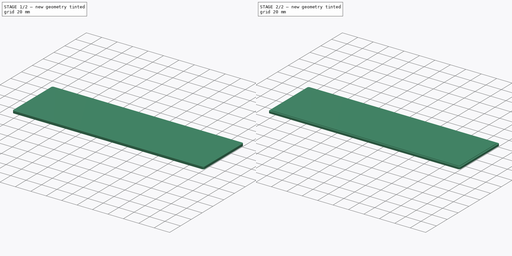
[diagram: build sequence overview — one tinted view per stage of 2, left to right]
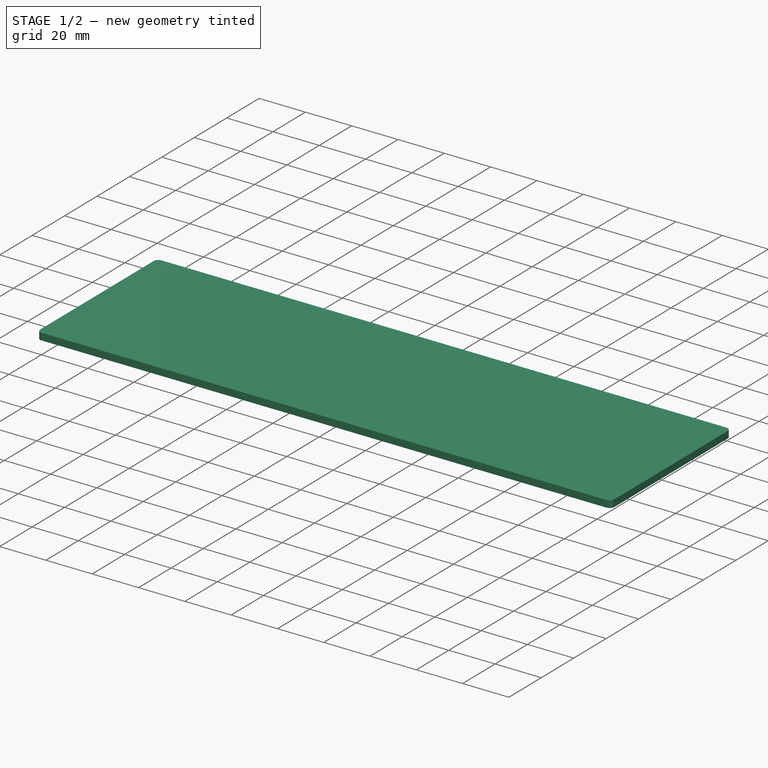
[diagram: stage 1 of 2 — iso view after this stage's code; geometry added in this stage tinted green]
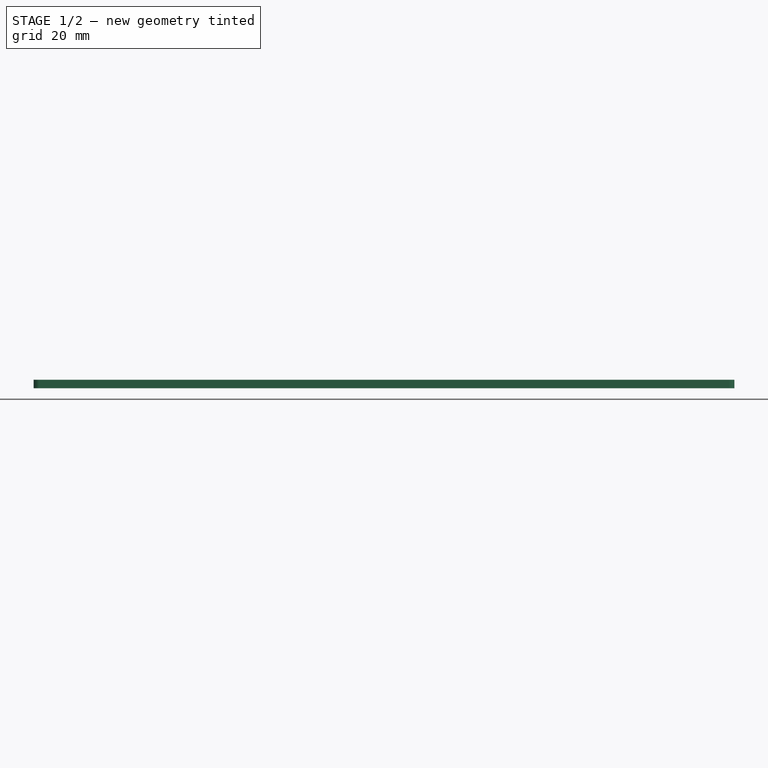
[diagram: stage 1 of 2 — front view after this stage's code; geometry added in this stage tinted green]
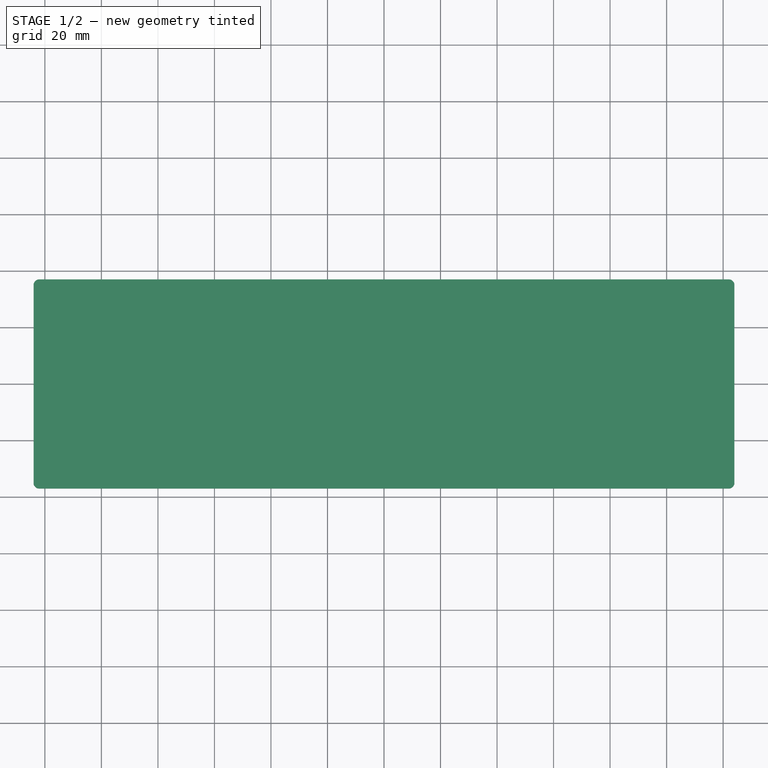
[diagram: stage 1 of 2 — top view after this stage's code; geometry added in this stage tinted green]
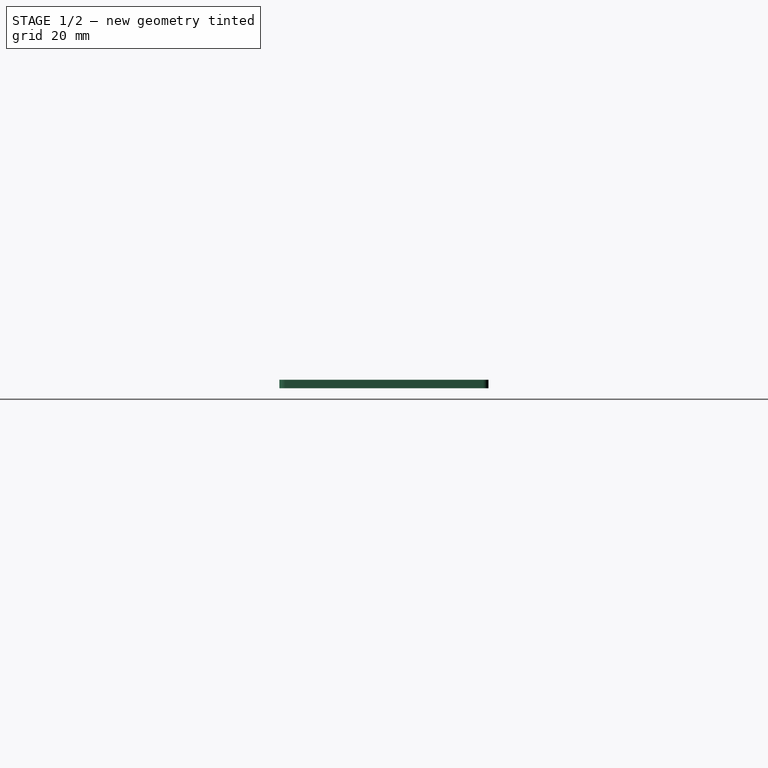
[diagram: stage 1 of 2 — right view after this stage's code; geometry added in this stage tinted green]
FCSTD DOCUMENT  (FreeCAD 1.0R39319 (Git))
Label: Flat Side
License: All rights reserved
LicenseURL: http://en.wikipedia.org/wiki/All_rights_reserved
objects: Sketcher::SketchObject×2, PartDesign::Fillet×2, PartDesign::Pad×1, PartDesign::Pocket×1, PartDesign::Body×1, Image::ImagePlane×1
note: 17 computed .brp shape members not serialized (recipe doc carries the construction recipe); baked Part::Feature solids carry a one-line shape summary decoded from their .brp

FEATURE [Sketcher::SketchObject] Sketch
  ArcFitTolerance = 0
  AttachmentSupport = -> [XY_Plane]
  FullyConstrained = true
  MakeInternals = false
  MapMode = 5
  sketch-geometry (4):
    g0: LineSegment StartX=-124 StartY=37 StartZ=0 EndX=124 EndY=37 EndZ=0
    g1: LineSegment StartX=124 StartY=37 StartZ=0 EndX=124 EndY=-37 EndZ=0
    g2: LineSegment StartX=124 StartY=-37 StartZ=0 EndX=-124 EndY=-37 EndZ=0
    g3: LineSegment StartX=-124 StartY=-37 StartZ=0 EndX=-124 EndY=37 EndZ=0
  constraints (10):
    c: Coincident(g0,g1)
    c: Coincident(g1,g2)
    c: Coincident(g2,g3)
    c: Coincident(g3,g0)
    c: Horizontal(g2)
    c: Vertical(g1)
    c: Symmetric(g0,g2,g-1)
    c: Symmetric(g0,g0,g-2)
    c: DistanceX(g0,g0) = 248
    c: DistanceY(g3,g3) = 74
FEATURE [PartDesign::Pad] Pad
  AllowMultiFace = false
  Direction = (0,0,1)
  Length = 3
  Length2 = 100
  Profile = -> Sketch
  Suppressed = false
  Type = 0
FEATURE [PartDesign::Fillet] Fillet
  Base = -> Pad [Edge5,Edge2,Edge1,Edge8]
  BaseFeature = -> Pad
  Radius = 2
  Refine = true
  SupportTransform = false
  Suppressed = false
  UseAllEdges = false
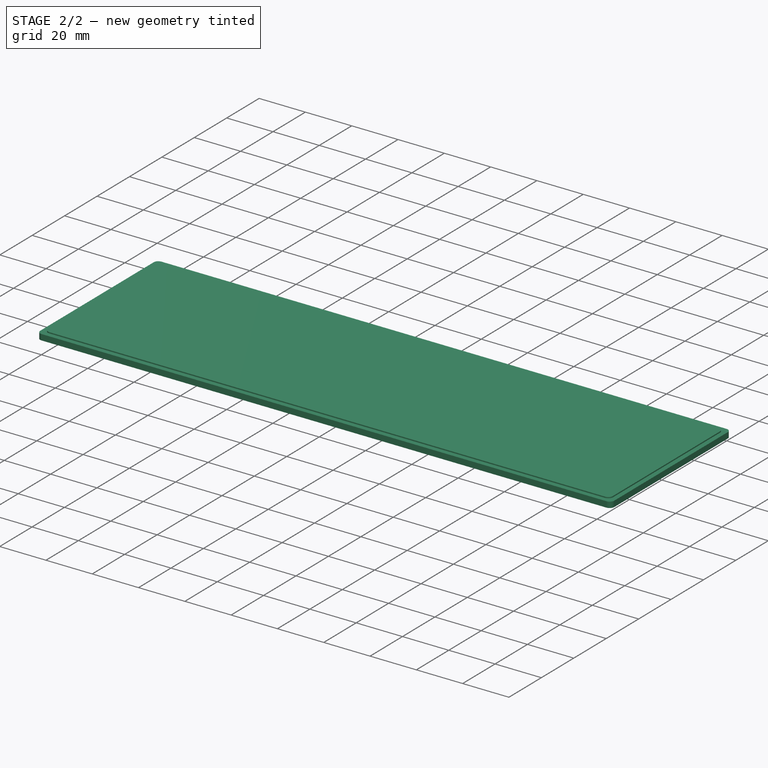
[diagram: stage 2 of 2 — iso view after this stage's code; geometry added in this stage tinted green]
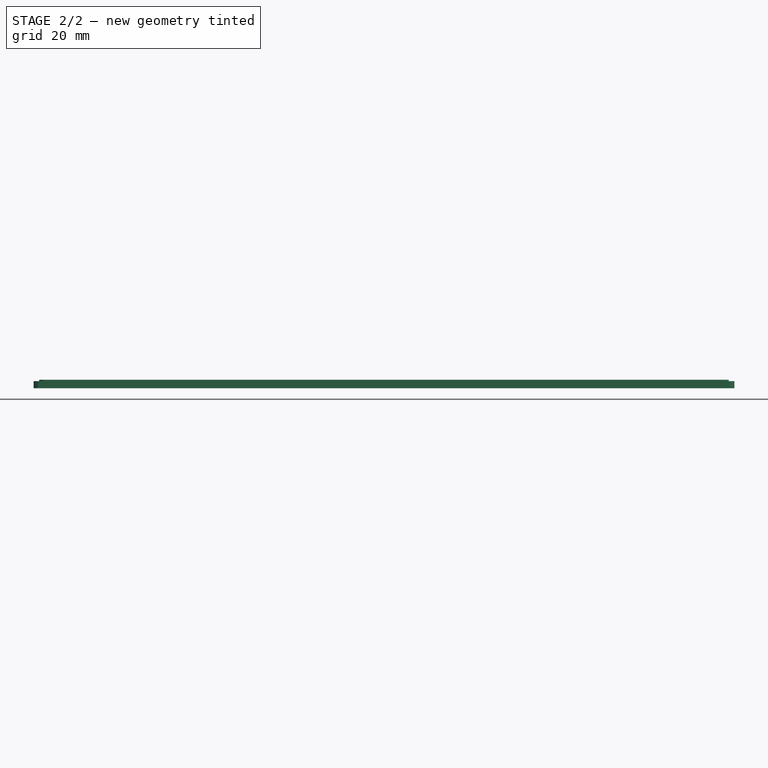
[diagram: stage 2 of 2 — front view after this stage's code; geometry added in this stage tinted green]
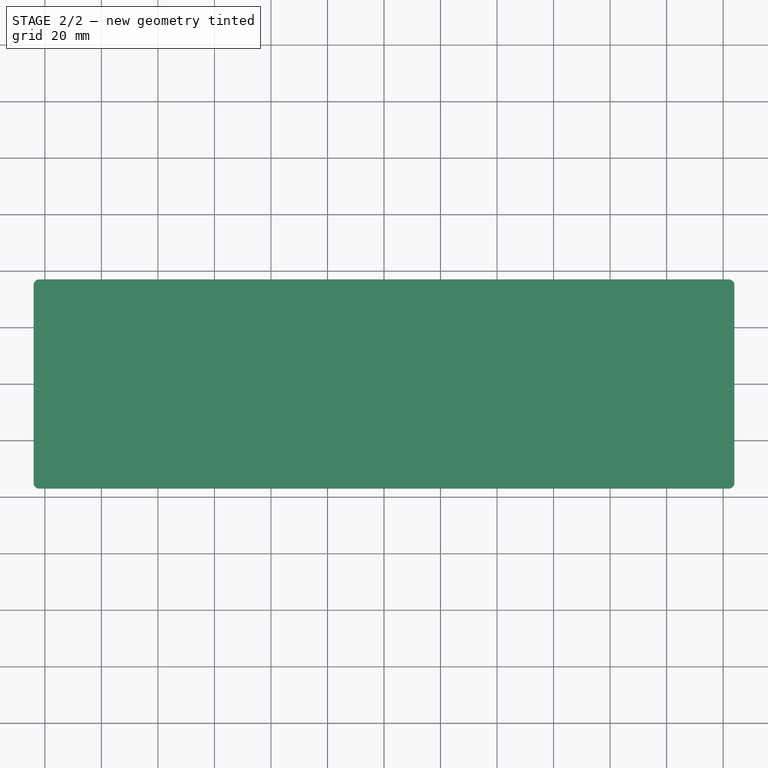
[diagram: stage 2 of 2 — top view after this stage's code; geometry added in this stage tinted green]
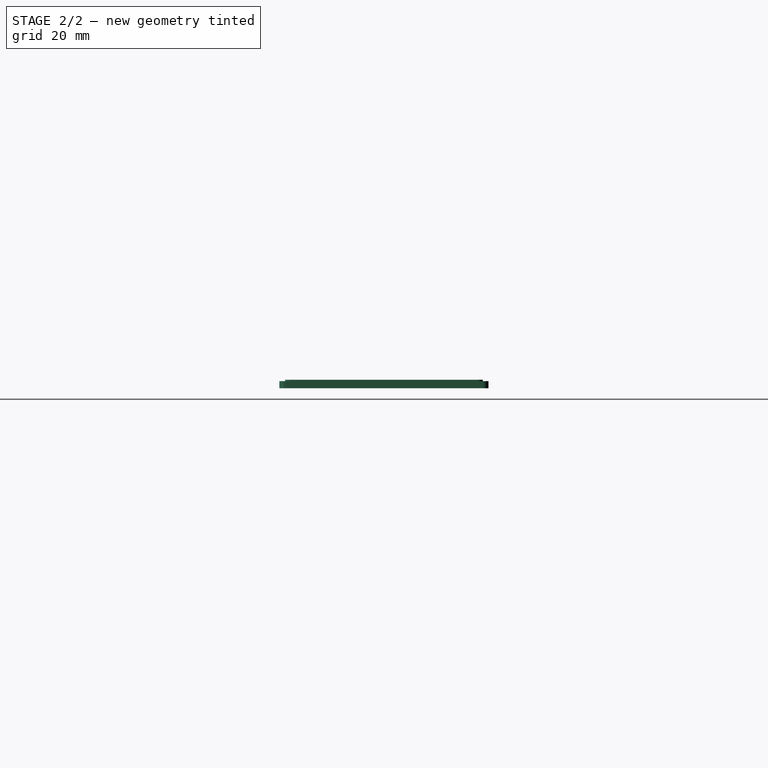
[diagram: stage 2 of 2 — right view after this stage's code; geometry added in this stage tinted green]
FEATURE [Sketcher::SketchObject] Sketch001
  ArcFitTolerance = 0
  AttachmentSupport = -> [Fillet]
  FullyConstrained = true
  MakeInternals = false
  MapMode = 5
  Placement = pos=(0,0,3) rot=(0,0,1;0rad)
  sketch-geometry (8):
    g0: LineSegment StartX=-122 StartY=35 StartZ=0 EndX=122 EndY=35 EndZ=0
    g1: LineSegment StartX=122 StartY=35 StartZ=0 EndX=122 EndY=-35 EndZ=0
    g2: LineSegment StartX=122 StartY=-35 StartZ=0 EndX=-122 EndY=-35 EndZ=0
    g3: LineSegment StartX=-122 StartY=-35 StartZ=0 EndX=-122 EndY=35 EndZ=0
    g4: LineSegment StartX=-124 StartY=37 StartZ=0 EndX=124 EndY=37 EndZ=0
    g5: LineSegment StartX=124 StartY=37 StartZ=0 EndX=124 EndY=-37 EndZ=0
    g6: LineSegment StartX=124 StartY=-37 StartZ=0 EndX=-124 EndY=-37 EndZ=0
    g7: LineSegment StartX=-124 StartY=-37 StartZ=0 EndX=-124 EndY=37 EndZ=0
  constraints (20):
    c: Coincident(g0,g1)
    c: Coincident(g1,g2)
    c: Coincident(g2,g3)
    c: Coincident(g3,g0)
    c: Horizontal(g2)
    c: Vertical(g1)
    c: Symmetric(g0,g2,g-1)
    c: Symmetric(g0,g0,g-2)
    c: Coincident(g4,g5)
    c: Coincident(g5,g6)
    c: Coincident(g6,g7)
    c: Coincident(g7,g4)
    c: Horizontal(g6)
    c: Vertical(g5)
    c: Symmetric(g4,g4,g-2)
    c: Symmetric(g4,g6,g-1)
    c: DistanceY(g7,g7) = 74
    c: DistanceX(g4,g4) = 248
    c: DistanceX(g4,g0) = 2
    c: DistanceY(g0,g4) = 2
FEATURE [PartDesign::Pocket] Pocket
  AllowMultiFace = false
  BaseFeature = -> Fillet
  Direction = (0,0,-1)
  Length = 0.5
  Length2 = 100
  Profile = -> Sketch001
  Suppressed = false
  Type = 0
FEATURE [PartDesign::Fillet] Fillet001
  Base = -> Pocket [Edge32,Edge34,Edge29,Edge30]
  BaseFeature = -> Pocket
  Radius = 2
  Refine = true
  SupportTransform = false
  Suppressed = false
  UseAllEdges = false
FEATURE [PartDesign::Body] Body
  AllowCompound = false
  Group = -> [Sketch,Pad,Fillet,Sketch001,Pocket,Fillet001]
  Origin = -> Origin
  Tip = -> Fillet001
FEATURE [Image::ImagePlane] Flat_Side  label="Flat Side"
  XSize = 198.942
  YSize = 198.677
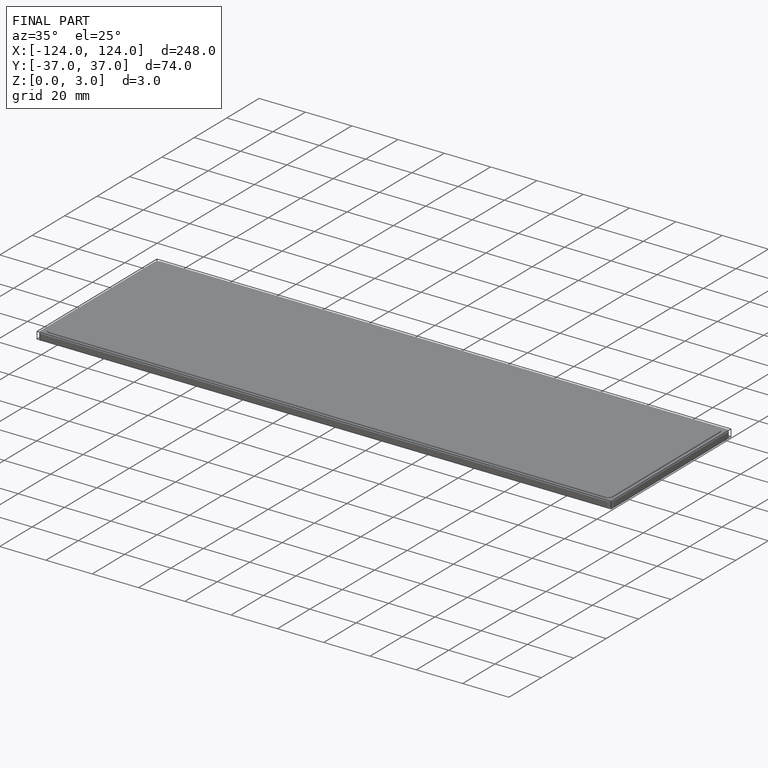
[diagram: finished part — iso view with bounding-box wireframe]
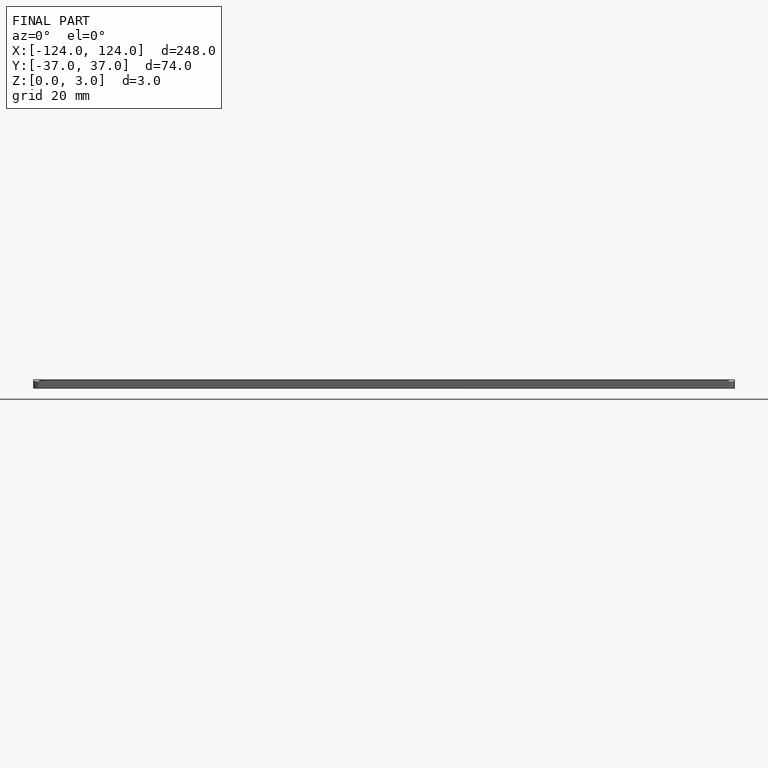
[diagram: finished part — front view with bounding-box wireframe]
